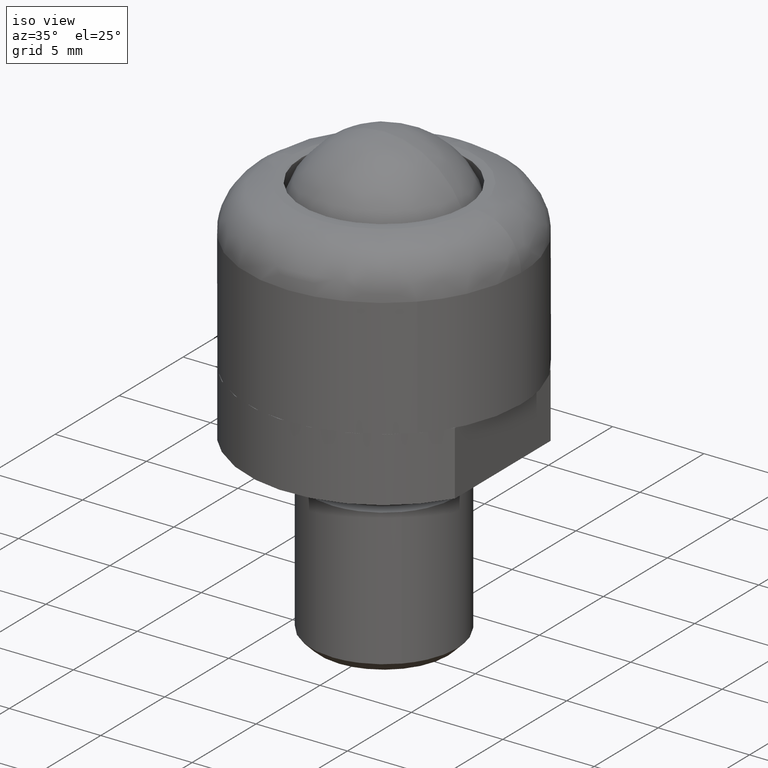
[diagram: clean part render]
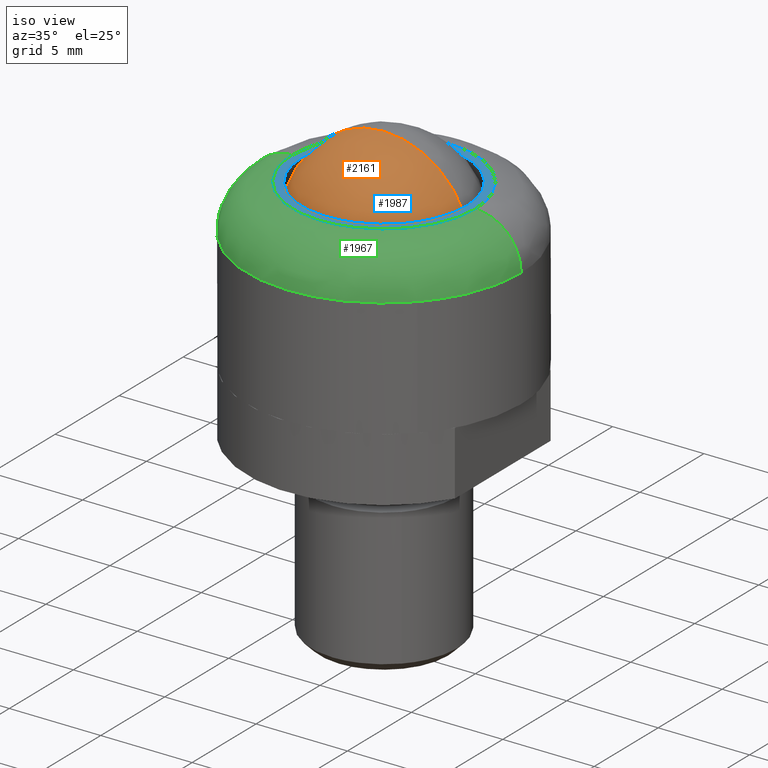
[diagram: same view with three faces highlighted in distinct colors, each labeled with its STEP entity id]
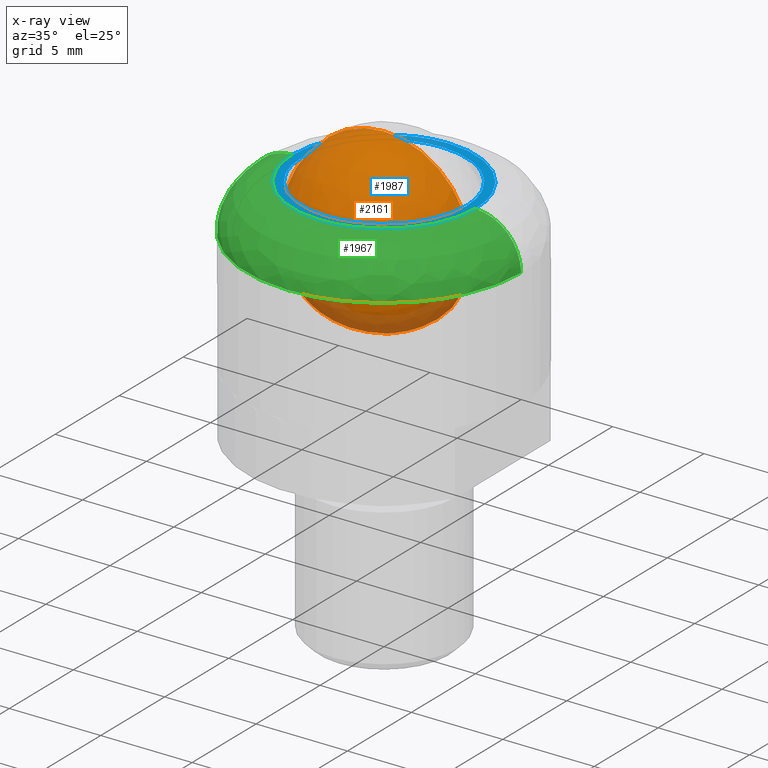
[diagram: x-ray of the same camera — body ghosted, the three highlighted faces saturated]
A machine part, iso view with three faces highlighted in distinct colors.
The next image is the same camera in x-ray (body ghosted, the three faces saturated) — at least one of them is partly hidden behind the body in this view.
Their STEP definitions:

[orange] entity #2161 — the highlighted face is a freeform B-spline surface patch.
#2034=CARTESIAN_POINT('',(4.762499999999982,0.0,6.737499585445666));
#2035=VERTEX_POINT('',#2034);
#2036=CARTESIAN_POINT('',(0.0,0.0,1.975000000000000));
#2037=VERTEX_POINT('',#2036);
#2038=CARTESIAN_POINT('',(4.762499999999982,0.0,6.737499585445666));
#2039=CARTESIAN_POINT('',(4.762514732332685,0.0,6.493981969425077));
#2040=CARTESIAN_POINT('',(4.725814310999592,0.0,6.016687996244976));
#2041=CARTESIAN_POINT('',(4.574124597411461,0.0,5.360043846073175));
#2042=CARTESIAN_POINT('',(4.349456858527381,0.0,4.766813615024045));
#2043=CARTESIAN_POINT('',(4.052094133969249,0.0,4.206341764249821));
#2044=CARTESIAN_POINT('',(3.703072825973951,0.0,3.723479116841512));
#2045=CARTESIAN_POINT('',(3.298180514088192,0.0,3.287624090510573));
#2046=CARTESIAN_POINT('',(2.898009852003741,0.0,2.944568869238067));
#2047=CARTESIAN_POINT('',(2.412395517687481,0.0,2.617933880416886));
#2048=CARTESIAN_POINT('',(1.829940402747807,0.0,2.320233805034202));
#2049=CARTESIAN_POINT('',(1.013009215858139,0.0,2.050344632642077));
#2050=CARTESIAN_POINT('',(0.370155750416168,0.0,1.974917072236426));
#2051=CARTESIAN_POINT('',(0.0,0.0,1.975000000000000));
#2052=B_SPLINE_CURVE_WITH_KNOTS('',3,(#2038,#2039,#2040,#2041,#2042,#2043,#2044,#2045,#2046,#2047,#2048,#2049,#2050,#2051),.UNSPECIFIED.,.F.,.U.,(4,1,1,1,1,1,1,1,1,1,1,4),(0.000000019654474,0.730551790342653,1.431894938645042,2.016345177654079,2.630018328089525,3.331359486902169,3.798901866662922,4.412570732506522,4.909355597674183,5.552251747885189,6.370481118446810,7.480929008099495),.UNSPECIFIED.);
#2053=EDGE_CURVE('',#2035,#2037,#2052,.T.);
#2055=CARTESIAN_POINT('',(-4.762499999999982,0.0,6.737499585445666));
#2056=VERTEX_POINT('',#2055);
#2057=CARTESIAN_POINT('',(-4.762499999999982,0.0,6.737499585445666));
#2058=CARTESIAN_POINT('',(-4.762514732332685,0.0,6.493981969425077));
#2059=CARTESIAN_POINT('',(-4.725814310999592,0.0,6.016687996244976));
#2060=CARTESIAN_POINT('',(-4.574124597411461,0.0,5.360043846073175));
#2061=CARTESIAN_POINT('',(-4.349456858527381,0.0,4.766813615024045));
#2062=CARTESIAN_POINT('',(-4.052094133969249,0.0,4.206341764249821));
#2063=CARTESIAN_POINT('',(-3.703072825973951,0.0,3.723479116841512));
#2064=CARTESIAN_POINT('',(-3.298180514088192,0.0,3.287624090510573));
#2065=CARTESIAN_POINT('',(-2.898009852003741,0.0,2.944568869238067));
#2066=CARTESIAN_POINT('',(-2.412395517687481,0.0,2.617933880416886));
#2067=CARTESIAN_POINT('',(-1.829940402747807,0.0,2.320233805034202));
#2068=CARTESIAN_POINT('',(-1.013009215858139,0.0,2.050344632642077));
#2069=CARTESIAN_POINT('',(-0.370155750416168,0.0,1.974917072236426));
#2070=CARTESIAN_POINT('',(0.0,0.0,1.975000000000000));
#2071=B_SPLINE_CURVE_WITH_KNOTS('',3,(#2057,#2058,#2059,#2060,#2061,#2062,#2063,#2064,#2065,#2066,#2067,#2068,#2069,#2070),.UNSPECIFIED.,.F.,.U.,(4,1,1,1,1,1,1,1,1,1,1,4),(0.000000019654474,0.730551790342653,1.431894938645042,2.016345177654079,2.630018328089525,3.331359486902169,3.798901866662922,4.412570732506522,4.909355597674183,5.552251747885189,6.370481118446810,7.480929008099495),.UNSPECIFIED.);
#2072=EDGE_CURVE('',#2056,#2037,#2071,.T.);
#2074=CARTESIAN_POINT('',(0.0,0.0,11.500000000000000));
#2075=VERTEX_POINT('',#2074);
#2076=CARTESIAN_POINT('',(0.0,0.0,11.500000000000000));
#2077=CARTESIAN_POINT('',(-0.340931149461797,0.0,11.500055971802750));
#2078=CARTESIAN_POINT('',(-0.915612100753172,0.0,11.438015420876470));
#2079=CARTESIAN_POINT('',(-1.645990165019853,0.0,11.221323934526101));
#2080=CARTESIAN_POINT('',(-2.260651995120762,0.0,10.946605036447981));
#2081=CARTESIAN_POINT('',(-2.791064391443057,0.0,10.615276539943720));
#2082=CARTESIAN_POINT('',(-3.337484662332443,0.0,10.158353219283370));
#2083=CARTESIAN_POINT('',(-3.846152066028528,0.0,9.590203875961683));
#2084=CARTESIAN_POINT('',(-4.259843387155067,0.0,8.914159520313602));
#2085=CARTESIAN_POINT('',(-4.561668172774212,0.0,8.172656290503381));
#2086=CARTESIAN_POINT('',(-4.726709104256833,0.0,7.468055751685463));
#2087=CARTESIAN_POINT('',(-4.762507216062855,0.0,6.961534513264486));
#2088=CARTESIAN_POINT('',(-4.762499999999982,0.0,6.737499585445666));
#2089=B_SPLINE_CURVE_WITH_KNOTS('',3,(#2076,#2077,#2078,#2079,#2080,#2081,#2082,#2083,#2084,#2085,#2086,#2087,#2088),.UNSPECIFIED.,.F.,.U.,(4,1,1,1,1,1,1,1,1,1,4),(0.000000019616457,1.022781354435088,1.724120218051358,2.279347462089524,3.039131588883236,3.594354046877478,4.412571008192345,5.318471570709793,5.961366957483507,6.808823214131451,7.480929475399615),.UNSPECIFIED.);
#2090=EDGE_CURVE('',#2075,#2056,#2089,.T.);
#2092=CARTESIAN_POINT('',(0.0,0.0,11.500000000000000));
#2093=CARTESIAN_POINT('',(0.340931149461797,0.0,11.500055971802750));
#2094=CARTESIAN_POINT('',(0.915612100753172,0.0,11.438015420876470));
#2095=CARTESIAN_POINT('',(1.645990165019853,0.0,11.221323934526101));
#2096=CARTESIAN_POINT('',(2.260651995120762,0.0,10.946605036447981));
#2097=CARTESIAN_POINT('',(2.791064391443057,0.0,10.615276539943720));
#2098=CARTESIAN_POINT('',(3.337484662332443,0.0,10.158353219283370));
#2099=CARTESIAN_POINT('',(3.846152066028528,0.0,9.590203875961683));
#2100=CARTESIAN_POINT('',(4.259843387155067,0.0,8.914159520313602));
#2101=CARTESIAN_POINT('',(4.561668172774212,0.0,8.172656290503381));
#2102=CARTESIAN_POINT('',(4.726709104256833,0.0,7.468055751685463));
#2103=CARTESIAN_POINT('',(4.762507216062855,0.0,6.961534513264486));
#2104=CARTESIAN_POINT('',(4.762499999999982,0.0,6.737499585445666));
#2105=B_SPLINE_CURVE_WITH_KNOTS('',3,(#2092,#2093,#2094,#2095,#2096,#2097,#2098,#2099,#2100,#2101,#2102,#2103,#2104),.UNSPECIFIED.,.F.,.U.,(4,1,1,1,1,1,1,1,1,1,4),(0.000000019616457,1.022781354435088,1.724120218051358,2.279347462089524,3.039131588883236,3.594354046877478,4.412571008192345,5.318471570709793,5.961366957483507,6.808823214131451,7.480929475399615),.UNSPECIFIED.);
#2106=EDGE_CURVE('',#2075,#2035,#2105,.T.);
#2111=CARTESIAN_POINT('',(-3.121845087131466,1.785937500000000,3.615654912868534));
#2112=CARTESIAN_POINT('',(-2.827331399666234,1.168160377358491,2.967724800445025));
#2113=CARTESIAN_POINT('',(-1.189274318907225,0.226785714285715,1.980402724371100));
#2114=CARTESIAN_POINT('',(1.189274318907225,0.226785714285715,1.980402724371100));
#2115=CARTESIAN_POINT('',(2.827331399666234,1.168160377358491,2.967724800445025));
#2116=CARTESIAN_POINT('',(3.121845087131466,1.785937500000000,3.615654912868534));
#2117=CARTESIAN_POINT('',(-3.769775199554978,1.168160377358491,3.910168600333770));
#2118=CARTESIAN_POINT('',(-3.567822956721675,0.226785714285715,3.169677043278325));
#2119=CARTESIAN_POINT('',(-1.611274883680757,-1.382661290322580,1.903675348957731));
#2120=CARTESIAN_POINT('',(1.611274883680757,-1.382661290322580,1.903675348957731));
#2121=CARTESIAN_POINT('',(3.567822956721675,0.226785714285715,3.169677043278325));
#2122=CARTESIAN_POINT('',(3.769775199554978,1.168160377358491,3.910168600333770));
#2123=CARTESIAN_POINT('',(-4.757097275628900,0.226785714285715,5.548225681092776));
#2124=CARTESIAN_POINT('',(-4.833824651042270,-1.382661290322580,5.126225116319244));
#2125=CARTESIAN_POINT('',(-2.497476069705173,-4.762499999999998,4.240023930294828));
#2126=CARTESIAN_POINT('',(2.497476069705173,-4.762499999999998,4.240023930294828));
#2127=CARTESIAN_POINT('',(4.833824651042270,-1.382661290322580,5.126225116319244));
#2128=CARTESIAN_POINT('',(4.757097275628900,0.226785714285715,5.548225681092776));
#2129=CARTESIAN_POINT('',(-4.757097275628900,0.226785714285715,7.926774318907228));
#2130=CARTESIAN_POINT('',(-4.833824651042270,-1.382661290322580,8.348774883680756));
#2131=CARTESIAN_POINT('',(-2.497476069705173,-4.762499999999998,9.234976069705173));
#2132=CARTESIAN_POINT('',(2.497476069705173,-4.762499999999998,9.234976069705173));
#2133=CARTESIAN_POINT('',(4.833824651042270,-1.382661290322580,8.348774883680756));
#2134=CARTESIAN_POINT('',(4.757097275628900,0.226785714285715,7.926774318907228));
#2135=CARTESIAN_POINT('',(-3.769775199554978,1.168160377358491,9.564831399666234));
#2136=CARTESIAN_POINT('',(-3.567822956721675,0.226785714285715,10.305322956721676));
#2137=CARTESIAN_POINT('',(-1.611274883680757,-1.382661290322580,11.571324651042270));
#2138=CARTESIAN_POINT('',(1.611274883680757,-1.382661290322580,11.571324651042270));
#2139=CARTESIAN_POINT('',(3.567822956721675,0.226785714285715,10.305322956721676));
#2140=CARTESIAN_POINT('',(3.769775199554978,1.168160377358491,9.564831399666234));
#2141=CARTESIAN_POINT('',(-3.121845087131466,1.785937500000000,9.859345087131466));
#2142=CARTESIAN_POINT('',(-2.827331399666234,1.168160377358491,10.507275199554982));
#2143=CARTESIAN_POINT('',(-1.189274318907225,0.226785714285715,11.494597275628903));
#2144=CARTESIAN_POINT('',(1.189274318907225,0.226785714285715,11.494597275628903));
#2145=CARTESIAN_POINT('',(2.827331399666234,1.168160377358491,10.507275199554982));
#2146=CARTESIAN_POINT('',(3.121845087131466,1.785937500000000,9.859345087131466));
#2154=(BOUNDED_SURFACE()B_SPLINE_SURFACE(2,2,((#2111,#2117,#2123,#2129,#2135,#2141),(#2112,#2118,#2124,#2130,#2136,#2142),(#2113,#2119,#2125,#2131,#2137,#2143),(#2114,#2120,#2126,#2132,#2138,#2144),(#2115,#2121,#2127,#2133,#2139,#2145),(#2116,#2122,#2128,#2134,#2140,#2146)),.UNSPECIFIED.,.F.,.F.,.U.)B_SPLINE_SURFACE_WITH_KNOTS((3,1,1,1,3),(3,1,1,1,3),(0.0,4.391166715965140,8.782333431930280,13.173500147895419,17.564666863860559),(0.0,4.391166715965142,8.782333431930285,13.173500147895430,17.564666863860570),.UNSPECIFIED.)GEOMETRIC_REPRESENTATION_ITEM()RATIONAL_B_SPLINE_SURFACE(((3.200000000000000,2.650000000000000,2.100000000000000,2.100000000000000,2.650000000000000,3.200000000000000),(2.650000000000000,2.100000000000000,1.550000000000000,1.550000000000000,2.100000000000000,2.650000000000000),(2.100000000000000,1.550000000000000,1.0,1.0,1.550000000000000,2.100000000000000),(2.100000000000000,1.550000000000000,1.0,1.0,1.550000000000000,2.100000000000000),(2.650000000000000,2.100000000000000,1.550000000000000,1.550000000000000,2.100000000000000,2.650000000000000),(3.200000000000000,2.650000000000000,2.100000000000000,2.100000000000000,2.650000000000000,3.200000000000000)))REPRESENTATION_ITEM('')SURFACE());
#2155=ORIENTED_EDGE('',*,*,#2072,.T.);
#2156=ORIENTED_EDGE('',*,*,#2053,.F.);
#2157=ORIENTED_EDGE('',*,*,#2106,.F.);
#2158=ORIENTED_EDGE('',*,*,#2090,.T.);
#2159=EDGE_LOOP('',(#2155,#2156,#2157,#2158));
#2160=FACE_OUTER_BOUND('',#2159,.T.);
#2161=ADVANCED_FACE('',(#2160),#2154,.T.);

[blue] entity #1987 — the highlighted face is a freeform B-spline surface patch.
#1519=CARTESIAN_POINT('',(3.263378557475537,-3.096830598843805,9.0));
#1520=VERTEX_POINT('',#1519);
#1526=CARTESIAN_POINT('',(4.498888751680795,0.0,9.0));
#1527=VERTEX_POINT('',#1526);
#1528=CARTESIAN_POINT('',(4.498888751680795,0.0,9.0));
#1529=CARTESIAN_POINT('',(4.498935460677604,-0.320220603456448,8.999999999999998));
#1530=CARTESIAN_POINT('',(4.445474646121634,-0.818310686023391,9.000000000000012));
#1531=CARTESIAN_POINT('',(4.229383001085413,-1.590608739054498,9.000000000000014));
#1532=CARTESIAN_POINT('',(3.884267433894095,-2.337191975704489,8.999999999999956));
#1533=CARTESIAN_POINT('',(3.496101165779491,-2.851693243615013,9.000000000000036));
#1534=CARTESIAN_POINT('',(3.263378557475537,-3.096830598843805,9.0));
#1535=B_SPLINE_CURVE_WITH_KNOTS('',3,(#1528,#1529,#1530,#1531,#1532,#1533,#1534),.UNSPECIFIED.,.F.,.U.,(4,1,1,1,4),(4.579866E-009,0.960650353553590,1.494348417905665,2.401623401945296,3.415643296512392),.UNSPECIFIED.);
#1536=EDGE_CURVE('',#1527,#1520,#1535,.T.);
#1538=CARTESIAN_POINT('',(0.000000281643695,4.498888751680786,9.0));
#1539=VERTEX_POINT('',#1538);
#1540=CARTESIAN_POINT('',(0.000000281643695,4.498888751680786,9.0));
#1541=CARTESIAN_POINT('',(0.331262336279236,4.498945270749258,9.000000000000002));
#1542=CARTESIAN_POINT('',(0.966148250582645,4.428445347769349,8.999999999999977));
#1543=CARTESIAN_POINT('',(1.782054620175012,4.156149013396295,9.000000000000037));
#1544=CARTESIAN_POINT('',(2.382196650118315,3.830554111193169,8.999999999999957));
#1545=CARTESIAN_POINT('',(2.838729470177412,3.502700902375347,9.000000000000076));
#1546=CARTESIAN_POINT('',(3.262246058372905,3.118865737678777,8.999999999999741));
#1547=CARTESIAN_POINT('',(3.652963870242032,2.651606884594702,9.000000000000094));
#1548=CARTESIAN_POINT('',(4.012696893274621,2.071797442346149,8.999999999999966));
#1549=CARTESIAN_POINT('',(4.296544077376456,1.409694884580769,9.000000000000025));
#1550=CARTESIAN_POINT('',(4.465076945890923,0.690118127753596,8.999999999999988));
#1551=CARTESIAN_POINT('',(4.498895768092663,0.211636100287874,9.000000000000005));
#1552=CARTESIAN_POINT('',(4.498888751680795,0.0,9.0));
#1553=B_SPLINE_CURVE_WITH_KNOTS('',3,(#1540,#1541,#1542,#1543,#1544,#1545,#1546,#1547,#1548,#1549,#1550,#1551,#1552),.UNSPECIFIED.,.F.,.U.,(4,1,1,1,1,1,1,1,1,1,4),(0.000000019808202,0.993774106784388,1.904737751068453,2.567254202280022,3.036545176461555,3.588627845486824,4.278749003096163,4.858457275012015,5.631397431601816,6.431940094218685,7.066848852878020),.UNSPECIFIED.);
#1554=EDGE_CURVE('',#1539,#1527,#1553,.T.);
#1556=CARTESIAN_POINT('',(-3.263378557475537,3.096830598843805,9.0));
#1557=VERTEX_POINT('',#1556);
#1558=CARTESIAN_POINT('',(-3.263378557475537,3.096830598843805,9.0));
#1559=CARTESIAN_POINT('',(-3.027803016656733,3.345184453949136,8.999999999999982));
#1560=CARTESIAN_POINT('',(-2.675637652944154,3.640138791487309,8.999999999999979));
#1561=CARTESIAN_POINT('',(-2.098015540390800,3.990517275772856,9.000000000000002));
#1562=CARTESIAN_POINT('',(-1.518581774449633,4.259346320877321,9.000000000000004));
#1563=CARTESIAN_POINT('',(-0.779687392186584,4.455869195582601,9.000000000000002));
#1564=CARTESIAN_POINT('',(-0.237706447497420,4.498895296450338,9.000000000000007));
#1565=CARTESIAN_POINT('',(0.000000281643695,4.498888751680786,9.0));
#1566=B_SPLINE_CURVE_WITH_KNOTS('',3,(#1558,#1559,#1560,#1561,#1562,#1563,#1564,#1565),.UNSPECIFIED.,.F.,.U.,(4,1,1,1,1,4),(5.635851E-009,1.026902184340313,1.369204948702386,2.025277013611290,2.938081313421259,3.651205978474409),.UNSPECIFIED.);
#1567=EDGE_CURVE('',#1557,#1539,#1566,.T.);
#1597=CARTESIAN_POINT('',(-4.498888751680795,0.0,9.0));
#1598=VERTEX_POINT('',#1597);
#1599=CARTESIAN_POINT('',(-4.498888751680795,0.0,9.0));
#1600=CARTESIAN_POINT('',(-4.498961887772488,0.338013898801075,8.999999999999968));
#1601=CARTESIAN_POINT('',(-4.438440496873623,0.871673584697317,9.000000000000087));
#1602=CARTESIAN_POINT('',(-4.231521354561919,1.563412135520404,8.999999999999902));
#1603=CARTESIAN_POINT('',(-3.978194527595485,2.133514708820720,9.000000000000103));
#1604=CARTESIAN_POINT('',(-3.655611177146444,2.647455450764606,9.000000000000007));
#1605=CARTESIAN_POINT('',(-3.385835839977255,2.967789333353322,8.999999999999977));
#1606=CARTESIAN_POINT('',(-3.263378557475537,3.096830598843805,9.0));
#1607=B_SPLINE_CURVE_WITH_KNOTS('',3,(#1599,#1600,#1601,#1602,#1603,#1604,#1605,#1606),.UNSPECIFIED.,.F.,.U.,(4,1,1,1,1,4),(4.579985E-009,1.014019935476088,1.601086251843831,2.161459252632333,2.881949470325617,3.415643296512392),.UNSPECIFIED.);
#1608=EDGE_CURVE('',#1598,#1557,#1607,.T.);
#1610=CARTESIAN_POINT('',(-0.000000281643695,-4.498888751680786,9.0));
#1611=VERTEX_POINT('',#1610);
#1612=CARTESIAN_POINT('',(-0.000000281643695,-4.498888751680786,9.0));
#1613=CARTESIAN_POINT('',(-0.331261436653752,-4.498946283964020,8.999999999999981));
#1614=CARTESIAN_POINT('',(-0.984558024116498,-4.426417659799504,9.000000000000055));
#1615=CARTESIAN_POINT('',(-1.843089873315131,-4.134009926427192,8.999999999999954));
#1616=CARTESIAN_POINT('',(-2.612984959522558,-3.694729804936839,9.000000000000069));
#1617=CARTESIAN_POINT('',(-3.204556311565883,-3.190758052789116,8.999999999999957));
#1618=CARTESIAN_POINT('',(-3.662679416166237,-2.635930111043005,9.000000000000005));
#1619=CARTESIAN_POINT('',(-4.002972513709909,-2.087466562229322,9.000000000000009));
#1620=CARTESIAN_POINT('',(-4.242751421282504,-1.537448993652727,9.000000000000004));
#1621=CARTESIAN_POINT('',(-4.443744385227652,-0.828116715130430,8.999999999999998));
#1622=CARTESIAN_POINT('',(-4.498954807411312,-0.331263809076668,9.000000000000007));
#1623=CARTESIAN_POINT('',(-4.498888751680795,0.0,9.0));
#1624=B_SPLINE_CURVE_WITH_KNOTS('',3,(#1612,#1613,#1614,#1615,#1616,#1617,#1618,#1619,#1620,#1621,#1622,#1623),.UNSPECIFIED.,.F.,.U.,(4,1,1,1,1,1,1,1,1,4),(0.000000019810025,0.993774106785876,1.959947733478866,2.705281991610567,3.643833865035968,4.278749003096404,4.858457275012053,5.576187526783677,6.073078951896562,7.066848852878023),.UNSPECIFIED.);
#1625=EDGE_CURVE('',#1611,#1598,#1624,.T.);
#1627=CARTESIAN_POINT('',(3.263378557475537,-3.096830598843805,9.0));
#1628=CARTESIAN_POINT('',(3.125936173908807,-3.241673960508475,9.000000000000011));
#1629=CARTESIAN_POINT('',(2.824718399277705,-3.519479138638781,9.000000000000004));
#1630=CARTESIAN_POINT('',(2.292988103453792,-3.890079977479928,9.000000000000009));
#1631=CARTESIAN_POINT('',(1.600605116036440,-4.232903609282900,8.999999999999973));
#1632=CARTESIAN_POINT('',(0.817724371304175,-4.451786574322478,9.000000000000156));
#1633=CARTESIAN_POINT('',(0.247214942362046,-4.498898278925623,8.999999999999893));
#1634=CARTESIAN_POINT('',(-0.000000281643695,-4.498888751680786,9.0));
#1635=B_SPLINE_CURVE_WITH_KNOTS('',3,(#1627,#1628,#1629,#1630,#1631,#1632,#1633,#1634),.UNSPECIFIED.,.F.,.U.,(4,1,1,1,1,4),(5.635812E-009,0.599024748011077,1.226578249678056,1.939697969219998,2.909554964137757,3.651205978474408),.UNSPECIFIED.);
#1636=EDGE_CURVE('',#1520,#1611,#1635,.T.);
#1825=CARTESIAN_POINT('',(-5.000000000043314,-5.084947E-016,9.0));
#1826=VERTEX_POINT('',#1825);
#1841=CARTESIAN_POINT('',(0.000000266971305,4.999999999999993,9.0));
#1842=VERTEX_POINT('',#1841);
#1843=CARTESIAN_POINT('',(-5.000000000043314,-5.084947E-016,9.0));
#1844=CARTESIAN_POINT('',(-5.000007890424095,0.224983855463615,8.999999999999991));
#1845=CARTESIAN_POINT('',(-4.968200484025853,0.695402587960306,9.000000000000005));
#1846=CARTESIAN_POINT('',(-4.821664554962340,1.387607833398099,9.0));
#1847=CARTESIAN_POINT('',(-4.545370741286215,2.138025560913845,8.999999999999975));
#1848=CARTESIAN_POINT('',(-4.153367709639184,2.825063642269815,9.000000000000092));
#1849=CARTESIAN_POINT('',(-3.609087681560905,3.492437774499846,8.999999999999831));
#1850=CARTESIAN_POINT('',(-3.055155872228553,3.982246604370579,9.000000000000059));
#1851=CARTESIAN_POINT('',(-2.435665046549815,4.382540348556812,9.000000000000011));
#1852=CARTESIAN_POINT('',(-1.806384525172863,4.682552600585473,8.999999999999986));
#1853=CARTESIAN_POINT('',(-0.981724500014594,4.932713782756722,9.000000000000009));
#1854=CARTESIAN_POINT('',(-0.357933658069401,5.000064999193293,8.999999999999996));
#1855=CARTESIAN_POINT('',(0.000000266971305,4.999999999999993,9.0));
#1856=B_SPLINE_CURVE_WITH_KNOTS('',3,(#1843,#1844,#1845,#1846,#1847,#1848,#1849,#1850,#1851,#1852,#1853,#1854,#1855),.UNSPECIFIED.,.F.,.U.,(4,1,1,1,1,1,1,1,1,1,4),(0.000000019292244,0.674951717166512,1.411264140829999,2.116897929513427,3.067967953989842,3.773601460351227,4.693987596807988,5.276899035328990,5.982535004457304,6.780206915142291,7.853994105105894),.UNSPECIFIED.);
#1857=EDGE_CURVE('',#1826,#1842,#1856,.T.);
#1859=CARTESIAN_POINT('',(5.000000000043314,2.542473E-016,9.0));
#1860=VERTEX_POINT('',#1859);
#1861=CARTESIAN_POINT('',(0.000000266971305,4.999999999999993,9.0));
#1862=CARTESIAN_POINT('',(0.398847000133691,5.000097447966470,9.000000000000036));
#1863=CARTESIAN_POINT('',(0.971481771603780,4.931099698194875,8.999999999999952));
#1864=CARTESIAN_POINT('',(1.785597564812273,4.686847104649864,9.000000000000080));
#1865=CARTESIAN_POINT('',(2.402214956439501,4.406715412632032,8.999999999999872));
#1866=CARTESIAN_POINT('',(3.055177603094580,3.981903376062838,8.999999999999989));
#1867=CARTESIAN_POINT('',(3.591837177801697,3.504441662849950,9.000000000000272));
#1868=CARTESIAN_POINT('',(4.032259571393689,2.977706885986116,8.999999999999732));
#1869=CARTESIAN_POINT('',(4.432611236209945,2.358245260990911,9.000000000000258));
#1870=CARTESIAN_POINT('',(4.715772950643976,1.719437867514450,9.000000000000053));
#1871=CARTESIAN_POINT('',(4.942633655908617,0.889683495762614,8.999999999999830));
#1872=CARTESIAN_POINT('',(5.000069851864605,0.357935572540400,9.000000000000041));
#1873=CARTESIAN_POINT('',(5.000000000043314,2.542473E-016,9.0));
#1874=B_SPLINE_CURVE_WITH_KNOTS('',3,(#1861,#1862,#1863,#1864,#1865,#1866,#1867,#1868,#1869,#1870,#1871,#1872,#1873),.UNSPECIFIED.,.F.,.U.,(4,1,1,1,1,1,1,1,1,1,4),(0.000000019314637,1.196505536072055,1.718061021973401,2.546413241993873,3.221366200386473,4.049703865517047,4.693987416775689,5.276898833070683,6.258651725996133,6.780206655428284,7.853993804166563),.UNSPECIFIED.);
#1875=EDGE_CURVE('',#1842,#1860,#1874,.T.);
#1931=CARTESIAN_POINT('',(-0.000000266971305,-4.999999999999993,9.0));
#1932=VERTEX_POINT('',#1931);
#1933=CARTESIAN_POINT('',(5.000000000043314,2.542473E-016,9.0));
#1934=CARTESIAN_POINT('',(5.000041579712678,-0.317025052964032,8.999999999999995));
#1935=CARTESIAN_POINT('',(4.955098385609738,-0.787428007263979,9.000000000000004));
#1936=CARTESIAN_POINT('',(4.789774363177290,-1.474190587111702,9.000000000000011));
#1937=CARTESIAN_POINT('',(4.563072176982196,-2.089914099054602,9.000000000000041));
#1938=CARTESIAN_POINT('',(4.221729305879987,-2.710056865325194,8.999999999999941));
#1939=CARTESIAN_POINT('',(3.735605243876211,-3.357245694064441,8.999999999999966));
#1940=CARTESIAN_POINT('',(3.149207689084382,-3.918974807236570,9.000000000000068));
#1941=CARTESIAN_POINT('',(2.421170862981664,-4.398976511957731,8.999999999999941));
#1942=CARTESIAN_POINT('',(1.794492247008189,-4.681356817983810,9.000000000000229));
#1943=CARTESIAN_POINT('',(0.991925724753935,-4.927530523026948,8.999999999999801));
#1944=CARTESIAN_POINT('',(0.419302006838902,-5.000124467389311,9.000000000000107));
#1945=CARTESIAN_POINT('',(-0.000000266971305,-4.999999999999993,9.0));
#1946=B_SPLINE_CURVE_WITH_KNOTS('',3,(#1933,#1934,#1935,#1936,#1937,#1938,#1939,#1940,#1941,#1942,#1943,#1944,#1945),.UNSPECIFIED.,.F.,.U.,(4,1,1,1,1,1,1,1,1,1,4),(0.000000019291996,0.951064410342130,1.411264140829679,2.116897929513068,2.914569780130336,3.528164280101916,4.540588463395548,5.338257872022725,6.135934325775751,6.596132728331905,7.853994105105901),.UNSPECIFIED.);
#1947=EDGE_CURVE('',#1860,#1932,#1946,.T.);
#1949=CARTESIAN_POINT('',(-0.000000266971305,-4.999999999999993,9.0));
#1950=CARTESIAN_POINT('',(-0.398847547025688,-5.000101955275626,8.999999999999991));
#1951=CARTESIAN_POINT('',(-0.971480213585778,-4.931092852496796,9.000000000000025));
#1952=CARTESIAN_POINT('',(-1.815026792356673,-4.678026698619735,8.999999999999972));
#1953=CARTESIAN_POINT('',(-2.550585220114177,-4.335681293545455,9.000000000000144));
#1954=CARTESIAN_POINT('',(-3.233486635202666,-3.842056770197375,8.999999999999952));
#1955=CARTESIAN_POINT('',(-3.755094058593636,-3.320399357424411,8.999999999999924));
#1956=CARTESIAN_POINT('',(-4.114395811200668,-2.859999629283382,8.999999999999931));
#1957=CARTESIAN_POINT('',(-4.408381226705074,-2.379587939717102,9.000000000000105));
#1958=CARTESIAN_POINT('',(-4.688671317558803,-1.787033867694606,8.999999999999952));
#1959=CARTESIAN_POINT('',(-4.932515580142626,-0.991953196744480,9.000000000000014));
#1960=CARTESIAN_POINT('',(-5.000057053994409,-0.347705331337722,8.999999999999952));
#1961=CARTESIAN_POINT('',(-5.000000000043314,-5.084947E-016,9.0));
#1962=B_SPLINE_CURVE_WITH_KNOTS('',3,(#1949,#1950,#1951,#1952,#1953,#1954,#1955,#1956,#1957,#1958,#1959,#1960,#1961),.UNSPECIFIED.,.F.,.U.,(4,1,1,1,1,1,1,1,1,1,4),(0.000000019314181,1.196505536071609,1.718061021972999,2.638454910744432,3.620204416498010,4.233791149064750,4.847386722705608,5.368940662403571,5.921175208852359,6.810891085786240,7.853993804166557),.UNSPECIFIED.);
#1963=EDGE_CURVE('',#1932,#1826,#1962,.T.);
#1968=CARTESIAN_POINT('',(5.499499980665701,-5.499499980618050,9.0));
#1969=CARTESIAN_POINT('',(-5.499500248886602,-5.499499980618050,9.0));
#1970=CARTESIAN_POINT('',(5.499499980665701,5.499500248838952,9.0));
#1971=CARTESIAN_POINT('',(-5.499500248886602,5.499500248838952,9.0));
#1972=B_SPLINE_SURFACE_WITH_KNOTS('',1,1,((#1968,#1970),(#1969,#1971)),.UNSPECIFIED.,.F.,.F.,.U.,(2,2),(2,2),(0.0,10.999000229552300),(0.0,10.999000229457000),.UNSPECIFIED.);
#1973=ORIENTED_EDGE('',*,*,#1963,.F.);
#1974=ORIENTED_EDGE('',*,*,#1947,.F.);
#1975=ORIENTED_EDGE('',*,*,#1875,.F.);
#1976=ORIENTED_EDGE('',*,*,#1857,.F.);
#1977=EDGE_LOOP('',(#1973,#1974,#1975,#1976));
#1978=FACE_OUTER_BOUND('',#1977,.T.);
#1979=ORIENTED_EDGE('',*,*,#1554,.T.);
#1980=ORIENTED_EDGE('',*,*,#1536,.T.);
#1981=ORIENTED_EDGE('',*,*,#1636,.T.);
#1982=ORIENTED_EDGE('',*,*,#1625,.T.);
#1983=ORIENTED_EDGE('',*,*,#1608,.T.);
#1984=ORIENTED_EDGE('',*,*,#1567,.T.);
#1985=EDGE_LOOP('',(#1979,#1980,#1981,#1982,#1983,#1984));
#1986=FACE_BOUND('',#1985,.T.);
#1987=ADVANCED_FACE('',(#1978,#1986),#1972,.F.);

[green] entity #1967 — the highlighted face is a freeform B-spline surface patch.
#1683=CARTESIAN_POINT('',(7.499999999999998,4.377505E-016,6.500000000022540));
#1684=VERTEX_POINT('',#1683);
#1703=CARTESIAN_POINT('',(5.440307722741466,-5.162659260906372,6.500000000022540));
#1704=VERTEX_POINT('',#1703);
#1705=CARTESIAN_POINT('',(7.499999999999998,4.377505E-016,6.500000000022540));
#1706=CARTESIAN_POINT('',(7.500004978192504,-0.296569295775707,6.500000000022548));
#1707=CARTESIAN_POINT('',(7.461264146130633,-0.949024412818240,6.500000000022538));
#1708=CARTESIAN_POINT('',(7.290171463277423,-1.839566882293058,6.500000000022550));
#1709=CARTESIAN_POINT('',(6.989934156635150,-2.772367460848641,6.500000000022515));
#1710=CARTESIAN_POINT('',(6.644593649050092,-3.513680738812940,6.500000000022582));
#1711=CARTESIAN_POINT('',(6.126048981543740,-4.361999581352154,6.500000000022458));
#1712=CARTESIAN_POINT('',(5.736349160913113,-4.850754676377436,6.500000000022683));
#1713=CARTESIAN_POINT('',(5.440307722741466,-5.162659260906372,6.500000000022540));
#1714=B_SPLINE_CURVE_WITH_KNOTS('',3,(#1705,#1706,#1707,#1708,#1709,#1710,#1711,#1712,#1713),.UNSPECIFIED.,.F.,.U.,(4,1,1,1,1,1,4),(3.949230E-009,0.889710148133248,1.957363372318722,2.713618459239906,3.825751682415431,4.404065830071315,5.694145000191808),.UNSPECIFIED.);
#1715=EDGE_CURVE('',#1684,#1704,#1714,.T.);
#1749=CARTESIAN_POINT('',(-0.000000330494854,-7.499999999999992,6.500000000022540));
#1750=VERTEX_POINT('',#1749);
#1751=CARTESIAN_POINT('',(5.440307722741466,-5.162659260906372,6.500000000022540));
#1752=CARTESIAN_POINT('',(5.102099579559788,-5.519141473230319,6.500000000022549));
#1753=CARTESIAN_POINT('',(4.523898488901426,-6.019325575841868,6.500000000022548));
#1754=CARTESIAN_POINT('',(3.529333267395300,-6.644423933079743,6.500000000022493));
#1755=CARTESIAN_POINT('',(2.558422508324002,-7.083635640485623,6.500000000022610));
#1756=CARTESIAN_POINT('',(1.331481735778617,-7.418320711793597,6.500000000022478));
#1757=CARTESIAN_POINT('',(0.475535602979275,-7.500046336971984,6.500000000022608));
#1758=CARTESIAN_POINT('',(-0.000000330494854,-7.499999999999992,6.500000000022540));
#1759=B_SPLINE_CURVE_WITH_KNOTS('',3,(#1751,#1752,#1753,#1754,#1755,#1756,#1757,#1758),.UNSPECIFIED.,.F.,.U.,(4,1,1,1,1,4),(4.373764E-009,1.474157996961938,2.282568049864745,3.518953328158689,4.660242098789375,6.086846258987342),.UNSPECIFIED.);
#1760=EDGE_CURVE('',#1704,#1750,#1759,.T.);
#1762=CARTESIAN_POINT('',(-7.499999999999998,-8.755010E-016,6.500000000022541));
#1763=VERTEX_POINT('',#1762);
#1764=CARTESIAN_POINT('',(-0.000000330494854,-7.499999999999992,6.500000000022540));
#1765=CARTESIAN_POINT('',(-0.383494193619272,-7.500011642684124,6.500000000022547));
#1766=CARTESIAN_POINT('',(-1.227188403497195,-7.435188433719577,6.500000000022530));
#1767=CARTESIAN_POINT('',(-2.377807851523626,-7.146966119386057,6.500000000022562));
#1768=CARTESIAN_POINT('',(-3.480043860188789,-6.674457347835470,6.500000000022505));
#1769=CARTESIAN_POINT('',(-4.305419654919294,-6.165872903493026,6.500000000022621));
#1770=CARTESIAN_POINT('',(-5.058861356289620,-5.559035651464155,6.500000000022387));
#1771=CARTESIAN_POINT('',(-5.717960313431723,-4.891829050180547,6.500000000022640));
#1772=CARTESIAN_POINT('',(-6.286033742515484,-4.125846070361853,6.500000000022522));
#1773=CARTESIAN_POINT('',(-6.755378181036678,-3.297331941459818,6.500000000022479));
#1774=CARTESIAN_POINT('',(-7.137528045077264,-2.390579753715305,6.500000000022697));
#1775=CARTESIAN_POINT('',(-7.428653707689292,-1.257851769376104,6.500000000022181));
#1776=CARTESIAN_POINT('',(-7.500030586632573,-0.429513941203708,6.500000000023101));
#1777=CARTESIAN_POINT('',(-7.499999999999998,-8.755010E-016,6.500000000022541));
#1778=B_SPLINE_CURVE_WITH_KNOTS('',3,(#1764,#1765,#1766,#1767,#1768,#1769,#1770,#1771,#1772,#1773,#1774,#1775,#1776,#1777),.UNSPECIFIED.,.F.,.U.,(4,1,1,1,1,1,1,1,1,1,1,4),(0.000000015643765,1.150486712175137,2.531070548999963,3.543503985014125,4.740015871154599,5.430311149043261,6.442724989873629,7.547191724671601,8.283508063097402,9.295939865156980,10.492452242905150,11.780990745615460),.UNSPECIFIED.);
#1779=EDGE_CURVE('',#1750,#1763,#1778,.T.);
#1825=CARTESIAN_POINT('',(-5.000000000043314,-5.084947E-016,9.0));
#1826=VERTEX_POINT('',#1825);
#1827=CARTESIAN_POINT('',(-5.000000000043314,-5.084947E-016,9.0));
#1828=CARTESIAN_POINT('',(-5.224992329176110,-6.924742E-016,9.000080637334035));
#1829=CARTESIAN_POINT('',(-5.582875494213345,-9.523436E-016,8.951337225687798));
#1830=CARTESIAN_POINT('',(-6.055138230057533,-1.222869E-015,8.779066954405998));
#1831=CARTESIAN_POINT('',(-6.439172015135716,-1.390911E-015,8.561529512687018));
#1832=CARTESIAN_POINT('',(-6.777271723951792,-1.476503E-015,8.277044831979321));
#1833=CARTESIAN_POINT('',(-7.032968260615376,-1.479138E-015,7.969308538469618));
#1834=CARTESIAN_POINT('',(-7.264137270218628,-1.416569E-015,7.594245561857378));
#1835=CARTESIAN_POINT('',(-7.449528859272108,-1.245753E-015,7.113579769936791));
#1836=CARTESIAN_POINT('',(-7.500049799176263,-1.012717E-015,6.704534012589609));
#1837=CARTESIAN_POINT('',(-7.499999999999998,-8.755010E-016,6.500000000022541));
#1838=B_SPLINE_CURVE_WITH_KNOTS('',3,(#1827,#1828,#1829,#1830,#1831,#1832,#1833,#1834,#1835,#1836,#1837),.UNSPECIFIED.,.F.,.U.,(4,1,1,1,1,1,1,1,4),(0.000000020275698,0.674952275256474,1.073794516320234,1.503313239802686,1.994181803360664,2.393023462445241,2.699820190181744,3.313419622743012,3.927015457151167),.UNSPECIFIED.);
#1839=EDGE_CURVE('',#1826,#1763,#1838,.T.);
#1859=CARTESIAN_POINT('',(5.000000000043314,2.542473E-016,9.0));
#1860=VERTEX_POINT('',#1859);
#1877=CARTESIAN_POINT('',(5.000000000043314,2.542473E-016,9.0));
#1878=CARTESIAN_POINT('',(5.245452101985463,3.546118E-016,9.000116452010001));
#1879=CARTESIAN_POINT('',(5.644215635422647,4.976983E-016,8.940764261256362));
#1880=CARTESIAN_POINT('',(6.138846654543890,6.323503E-016,8.739407950438555));
#1881=CARTESIAN_POINT('',(6.460775317035456,6.964912E-016,8.538286302981923));
#1882=CARTESIAN_POINT('',(6.768005235246996,7.364632E-016,8.283006973426254));
#1883=CARTESIAN_POINT('',(7.038546529384050,7.431644E-016,7.973230818805604));
#1884=CARTESIAN_POINT('',(7.271120062617587,7.044028E-016,7.574159271657974));
#1885=CARTESIAN_POINT('',(7.449944228324046,6.161790E-016,7.093101489234308));
#1886=CARTESIAN_POINT('',(7.500082113211626,5.132321E-016,6.724992394283261));
#1887=CARTESIAN_POINT('',(7.499999999999998,4.377505E-016,6.500000000022540));
#1888=B_SPLINE_CURVE_WITH_KNOTS('',3,(#1877,#1878,#1879,#1880,#1881,#1882,#1883,#1884,#1885,#1886,#1887),.UNSPECIFIED.,.F.,.U.,(4,1,1,1,1,1,1,1,4),(0.000000020275115,0.736315116080057,1.196515260965232,1.595357382436494,1.871479091350164,2.393023462444814,2.822540813046694,3.252063498900667,3.927015457151164),.UNSPECIFIED.);
#1889=EDGE_CURVE('',#1860,#1684,#1888,.T.);
#1897=CARTESIAN_POINT('',(4.826623561338355,0.134936648841677,8.993980876132977));
#1898=CARTESIAN_POINT('',(4.826623561338355,0.067861243050944,8.993980876132975));
#1899=CARTESIAN_POINT('',(4.826623561338356,-4.826623561338353,8.993980876132977));
#1900=CARTESIAN_POINT('',(5.910714E-016,-4.826623561338355,8.993980876132977));
#1901=CARTESIAN_POINT('',(-4.826623561338353,-4.826623561338356,8.993980876132977));
#1902=CARTESIAN_POINT('',(-4.826623561338354,0.067861243050944,8.993980876132975));
#1903=CARTESIAN_POINT('',(-4.826623561338354,0.134936648841678,8.993980876132975));
#1904=CARTESIAN_POINT('',(7.694348179799923,0.215108873772489,9.193339213708565));
#1905=CARTESIAN_POINT('',(7.694348179799924,0.108180806999418,9.193339213708567));
#1906=CARTESIAN_POINT('',(7.694348179799923,-7.694348179799921,9.193339213708565));
#1907=CARTESIAN_POINT('',(9.422548E-016,-7.694348179799923,9.193339213708565));
#1908=CARTESIAN_POINT('',(-7.694348179799921,-7.694348179799923,9.193339213708565));
#1909=CARTESIAN_POINT('',(-7.694348179799922,0.108180806999419,9.193339213708565));
#1910=CARTESIAN_POINT('',(-7.694348179799923,0.215108873772492,9.193339213708565));
#1911=CARTESIAN_POINT('',(7.493915763898146,0.209505437296178,6.325689465090855));
#1912=CARTESIAN_POINT('',(7.493915763898145,0.105362772255680,6.325689465090854));
#1913=CARTESIAN_POINT('',(7.493915763898145,-7.493915763898144,6.325689465090854));
#1914=CARTESIAN_POINT('',(9.177097E-016,-7.493915763898146,6.325689465090854));
#1915=CARTESIAN_POINT('',(-7.493915763898144,-7.493915763898147,6.325689465090854));
#1916=CARTESIAN_POINT('',(-7.493915763898146,0.105362772255680,6.325689465090854));
#1917=CARTESIAN_POINT('',(-7.493915763898146,0.209505437296181,6.325689465090854));
#1925=(BOUNDED_SURFACE()B_SPLINE_SURFACE(2,2,((#1897,#1904,#1911),(#1898,#1905,#1912),(#1899,#1906,#1913),(#1900,#1907,#1914),(#1901,#1908,#1915),(#1902,#1909,#1916),(#1903,#1910,#1917)),.UNSPECIFIED.,.F.,.F.,.U.)B_SPLINE_SURFACE_WITH_KNOTS((3,1,2,1,3),(3,3),(0.0,0.248326523575046,12.664652702327629,25.080978881080199,25.329305404655258),(0.0,4.556817942492553),.UNSPECIFIED.)GEOMETRIC_REPRESENTATION_ITEM()RATIONAL_B_SPLINE_SURFACE(((0.926697838400259,0.606435486919035,0.921564728292852),(0.921332230155912,0.602924207283492,0.916228840909793),(0.647686209694202,0.423848945870745,0.644098584373797),(0.915966621911565,0.599412927647948,0.910892953526734),(0.647686209694202,0.423848945870745,0.644098584373797),(0.921332230155912,0.602924207283492,0.916228840909793),(0.926697838400259,0.606435486919036,0.921564728292852)))REPRESENTATION_ITEM('')SURFACE());
#1926=ORIENTED_EDGE('',*,*,#1839,.T.);
#1927=ORIENTED_EDGE('',*,*,#1779,.F.);
#1928=ORIENTED_EDGE('',*,*,#1760,.F.);
#1929=ORIENTED_EDGE('',*,*,#1715,.F.);
#1930=ORIENTED_EDGE('',*,*,#1889,.F.);
#1931=CARTESIAN_POINT('',(-0.000000266971305,-4.999999999999993,9.0));
#1932=VERTEX_POINT('',#1931);
#1933=CARTESIAN_POINT('',(5.000000000043314,2.542473E-016,9.0));
#1934=CARTESIAN_POINT('',(5.000041579712678,-0.317025052964032,8.999999999999995));
#1935=CARTESIAN_POINT('',(4.955098385609738,-0.787428007263979,9.000000000000004));
#1936=CARTESIAN_POINT('',(4.789774363177290,-1.474190587111702,9.000000000000011));
#1937=CARTESIAN_POINT('',(4.563072176982196,-2.089914099054602,9.000000000000041));
#1938=CARTESIAN_POINT('',(4.221729305879987,-2.710056865325194,8.999999999999941));
#1939=CARTESIAN_POINT('',(3.735605243876211,-3.357245694064441,8.999999999999966));
#1940=CARTESIAN_POINT('',(3.149207689084382,-3.918974807236570,9.000000000000068));
#1941=CARTESIAN_POINT('',(2.421170862981664,-4.398976511957731,8.999999999999941));
#1942=CARTESIAN_POINT('',(1.794492247008189,-4.681356817983810,9.000000000000229));
#1943=CARTESIAN_POINT('',(0.991925724753935,-4.927530523026948,8.999999999999801));
#1944=CARTESIAN_POINT('',(0.419302006838902,-5.000124467389311,9.000000000000107));
#1945=CARTESIAN_POINT('',(-0.000000266971305,-4.999999999999993,9.0));
#1946=B_SPLINE_CURVE_WITH_KNOTS('',3,(#1933,#1934,#1935,#1936,#1937,#1938,#1939,#1940,#1941,#1942,#1943,#1944,#1945),.UNSPECIFIED.,.F.,.U.,(4,1,1,1,1,1,1,1,1,1,4),(0.000000019291996,0.951064410342130,1.411264140829679,2.116897929513068,2.914569780130336,3.528164280101916,4.540588463395548,5.338257872022725,6.135934325775751,6.596132728331905,7.853994105105901),.UNSPECIFIED.);
#1947=EDGE_CURVE('',#1860,#1932,#1946,.T.);
#1948=ORIENTED_EDGE('',*,*,#1947,.T.);
#1949=CARTESIAN_POINT('',(-0.000000266971305,-4.999999999999993,9.0));
#1950=CARTESIAN_POINT('',(-0.398847547025688,-5.000101955275626,8.999999999999991));
#1951=CARTESIAN_POINT('',(-0.971480213585778,-4.931092852496796,9.000000000000025));
#1952=CARTESIAN_POINT('',(-1.815026792356673,-4.678026698619735,8.999999999999972));
#1953=CARTESIAN_POINT('',(-2.550585220114177,-4.335681293545455,9.000000000000144));
#1954=CARTESIAN_POINT('',(-3.233486635202666,-3.842056770197375,8.999999999999952));
#1955=CARTESIAN_POINT('',(-3.755094058593636,-3.320399357424411,8.999999999999924));
#1956=CARTESIAN_POINT('',(-4.114395811200668,-2.859999629283382,8.999999999999931));
#1957=CARTESIAN_POINT('',(-4.408381226705074,-2.379587939717102,9.000000000000105));
#1958=CARTESIAN_POINT('',(-4.688671317558803,-1.787033867694606,8.999999999999952));
#1959=CARTESIAN_POINT('',(-4.932515580142626,-0.991953196744480,9.000000000000014));
#1960=CARTESIAN_POINT('',(-5.000057053994409,-0.347705331337722,8.999999999999952));
#1961=CARTESIAN_POINT('',(-5.000000000043314,-5.084947E-016,9.0));
#1962=B_SPLINE_CURVE_WITH_KNOTS('',3,(#1949,#1950,#1951,#1952,#1953,#1954,#1955,#1956,#1957,#1958,#1959,#1960,#1961),.UNSPECIFIED.,.F.,.U.,(4,1,1,1,1,1,1,1,1,1,4),(0.000000019314181,1.196505536071609,1.718061021972999,2.638454910744432,3.620204416498010,4.233791149064750,4.847386722705608,5.368940662403571,5.921175208852359,6.810891085786240,7.853993804166557),.UNSPECIFIED.);
#1963=EDGE_CURVE('',#1932,#1826,#1962,.T.);
#1964=ORIENTED_EDGE('',*,*,#1963,.T.);
#1965=EDGE_LOOP('',(#1926,#1927,#1928,#1929,#1930,#1948,#1964));
#1966=FACE_OUTER_BOUND('',#1965,.T.);
#1967=ADVANCED_FACE('',(#1966),#1925,.T.);